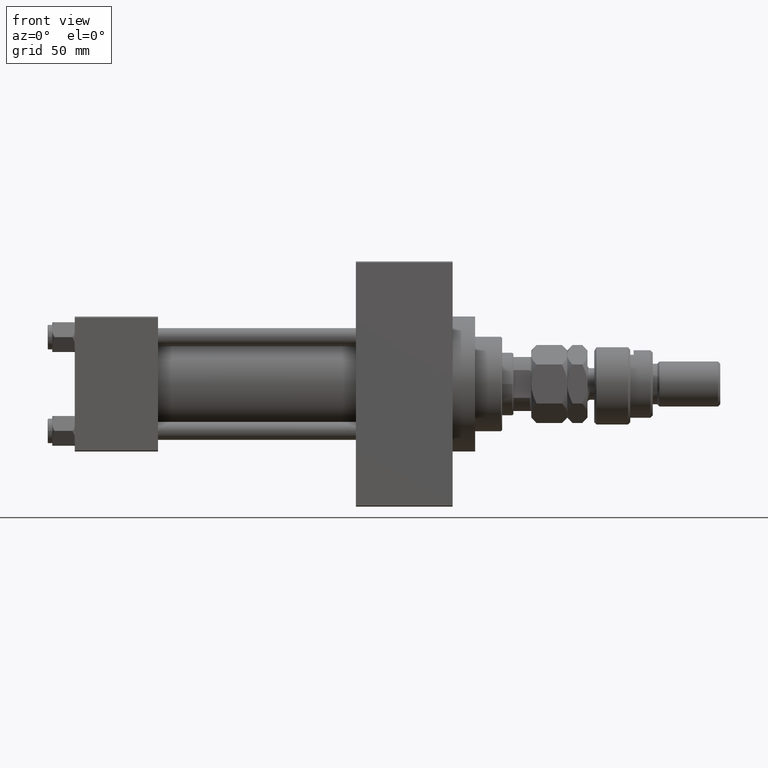
[diagram: clean part render]
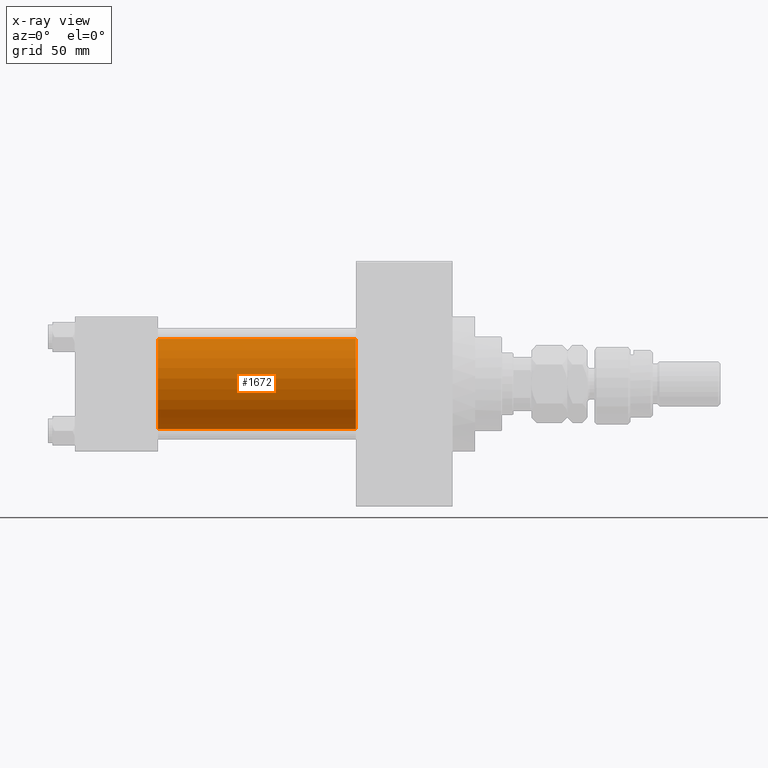
[diagram: x-ray — body ghosted, one internal face saturated and labeled with its STEP entity id]
A machine part, front view, then the same camera in x-ray: the body is ghosted and one INTERNAL B-rep face — a face not visible from any outside direction — is saturated and labeled: STEP entity #1672.
In plain terms, the highlighted cylindrical surface (partial cylindrical patch) has radius 20 mm, axis along (-1, -0, -0).
Its self-contained STEP definition (entity closure, byte-faithful):
#1289 = AXIS2_PLACEMENT_3D ( 'NONE', #17886, #9640, #25825 ) ;
#1340 = LINE ( 'NONE', #6081, #20891 ) ;
#1672 = ADVANCED_FACE ( 'NONE', ( #8167 ), #47688, .F. ) ;
#1913 = CARTESIAN_POINT ( 'NONE',  ( 125.0000000000000000, -1.527916156705042519E-16, -20.00000000000000000 ) ) ;
#3819 = CIRCLE ( 'NONE', #1289, 20.00000000000000000 ) ;
#3904 = VERTEX_POINT ( 'NONE', #49261 ) ;
#5863 = ORIENTED_EDGE ( 'NONE', *, *, #6101, .F. ) ;
#6081 = CARTESIAN_POINT ( 'NONE',  ( 125.0000000000000000, -2.602085213965210642E-15, 20.00000000000000000 ) ) ;
#6101 = EDGE_CURVE ( 'NONE', #3904, #26230, #3819, .T. ) ;
#6158 = AXIS2_PLACEMENT_3D ( 'NONE', #39467, #15624, #43694 ) ;
#8167 = FACE_OUTER_BOUND ( 'NONE', #9634, .T. ) ;
#9032 = DIRECTION ( 'NONE',  ( -1.000000000000000000, -0.000000000000000000, -0.000000000000000000 ) ) ;
#9634 = EDGE_LOOP ( 'NONE', ( #24527, #46663, #5863, #26606 ) ) ;
#9640 = DIRECTION ( 'NONE',  ( 1.000000000000000000, 0.000000000000000000, 0.000000000000000000 ) ) ;
#11305 = CARTESIAN_POINT ( 'NONE',  ( 125.0000000000000000, -2.602085213965210642E-15, 20.00000000000000000 ) ) ;
#13200 = DIRECTION ( 'NONE',  ( 0.000000000000000000, 0.000000000000000000, -1.000000000000000000 ) ) ;
#14384 = DIRECTION ( 'NONE',  ( -1.000000000000000000, -0.000000000000000000, -0.000000000000000000 ) ) ;
#15149 = EDGE_CURVE ( 'NONE', #34232, #3904, #1340, .T. ) ;
#15624 = DIRECTION ( 'NONE',  ( -1.000000000000000000, -0.000000000000000000, -0.000000000000000000 ) ) ;
#15866 = VECTOR ( 'NONE', #14384, 1000.000000000000000 ) ;
#16096 = VERTEX_POINT ( 'NONE', #17019 ) ;
#17019 = CARTESIAN_POINT ( 'NONE',  ( 125.0000000000000000, -1.527916156705042519E-16, -20.00000000000000000 ) ) ;
#17191 = CARTESIAN_POINT ( 'NONE',  ( 125.0000000000000000, -2.602085213965210642E-15, 0.000000000000000000 ) ) ;
#17886 = CARTESIAN_POINT ( 'NONE',  ( 37.00000000000000000, -2.602085213965210642E-15, 0.000000000000000000 ) ) ;
#19767 = EDGE_CURVE ( 'NONE', #16096, #26230, #29770, .T. ) ;
#20891 = VECTOR ( 'NONE', #9032, 1000.000000000000000 ) ;
#21690 = DIRECTION ( 'NONE',  ( 1.000000000000000000, 0.000000000000000000, 0.000000000000000000 ) ) ;
#24527 = ORIENTED_EDGE ( 'NONE', *, *, #49223, .T. ) ;
#25825 = DIRECTION ( 'NONE',  ( 0.000000000000000000, 0.000000000000000000, -1.000000000000000000 ) ) ;
#26230 = VERTEX_POINT ( 'NONE', #37139 ) ;
#26606 = ORIENTED_EDGE ( 'NONE', *, *, #15149, .F. ) ;
#29770 = LINE ( 'NONE', #1913, #15866 ) ;
#31254 = CIRCLE ( 'NONE', #48189, 20.00000000000000000 ) ;
#34232 = VERTEX_POINT ( 'NONE', #11305 ) ;
#37139 = CARTESIAN_POINT ( 'NONE',  ( 37.00000000000000000, -1.527916156705042519E-16, -20.00000000000000000 ) ) ;
#39467 = CARTESIAN_POINT ( 'NONE',  ( 125.0000000000000000, -2.602085213965210642E-15, 0.000000000000000000 ) ) ;
#43694 = DIRECTION ( 'NONE',  ( 0.000000000000000000, 0.000000000000000000, 1.000000000000000000 ) ) ;
#46663 = ORIENTED_EDGE ( 'NONE', *, *, #19767, .T. ) ;
#47688 = CYLINDRICAL_SURFACE ( 'NONE', #6158, 20.00000000000000000 ) ;
#48189 = AXIS2_PLACEMENT_3D ( 'NONE', #17191, #21690, #13200 ) ;
#49223 = EDGE_CURVE ( 'NONE', #34232, #16096, #31254, .T. ) ;
#49261 = CARTESIAN_POINT ( 'NONE',  ( 37.00000000000000000, -2.602085213965210642E-15, 20.00000000000000000 ) ) ;